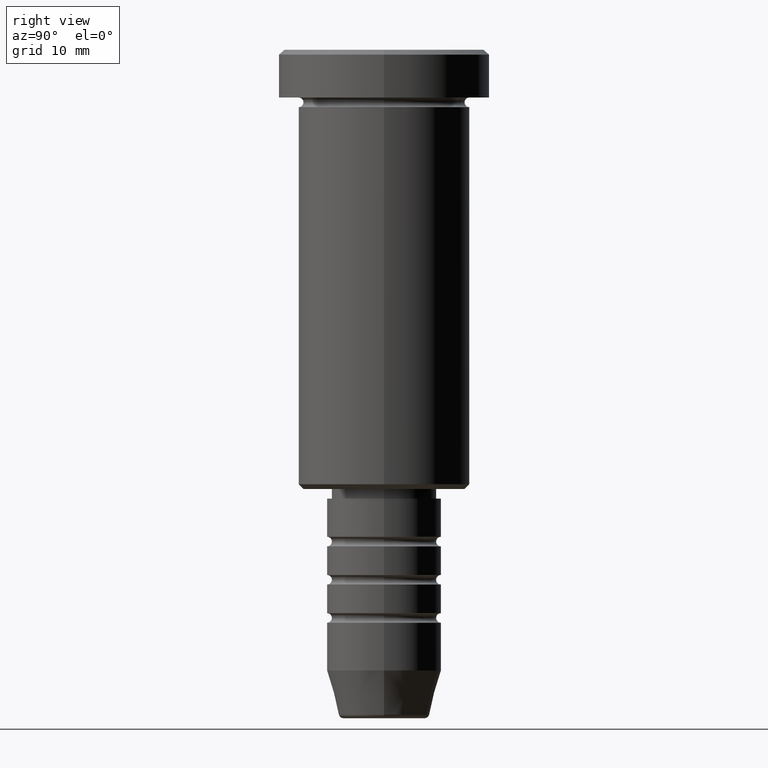
[diagram: clean part render]
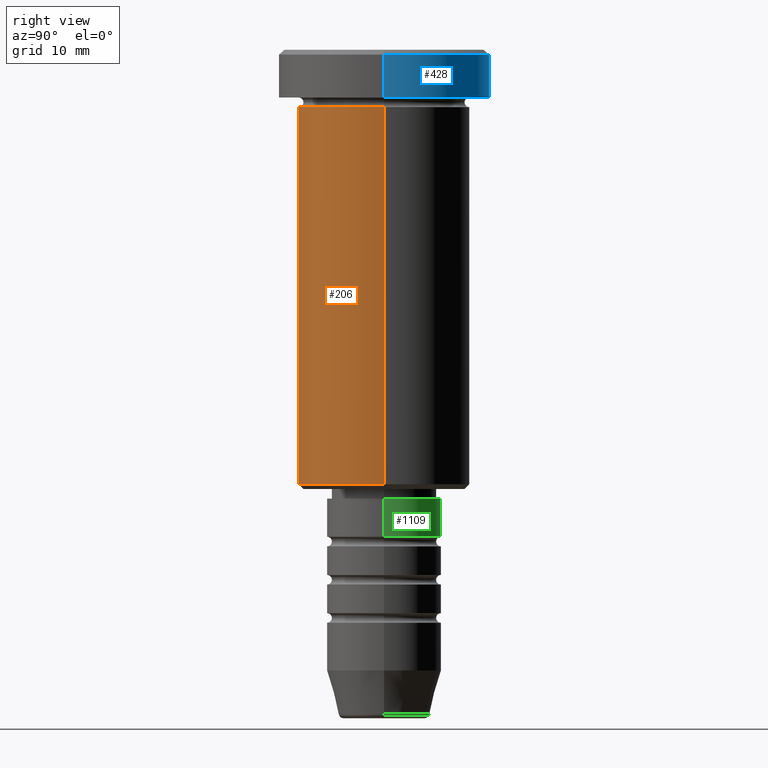
[diagram: same view with three faces highlighted in distinct colors, each labeled with its STEP entity id]
A machine part, right view with three faces highlighted in distinct colors.
Their STEP definitions:

[orange] entity #206 — the highlighted cylindrical surface (partial cylindrical patch) has radius 9 mm, axis along (-0, -0, 1).
#27 = DIRECTION ( 'NONE',  ( 1.000000000000000000, 0.000000000000000000, 0.000000000000000000 ) ) ;
#37 = AXIS2_PLACEMENT_3D ( 'NONE', #1055, #158, #1047 ) ;
#65 = CARTESIAN_POINT ( 'NONE',  ( 9.000000000000000000, 0.000000000000000000, 0.000000000000000000 ) ) ;
#108 = AXIS2_PLACEMENT_3D ( 'NONE', #1131, #586, #27 ) ;
#158 = DIRECTION ( 'NONE',  ( -0.000000000000000000, -0.000000000000000000, 1.000000000000000000 ) ) ;
#179 = EDGE_CURVE ( 'NONE', #905, #277, #946, .T. ) ;
#206 = ADVANCED_FACE ( 'NONE', ( #248 ), #991, .T. ) ;
#210 = CIRCLE ( 'NONE', #108, 9.000000000000000000 ) ;
#248 = FACE_OUTER_BOUND ( 'NONE', #556, .T. ) ;
#277 = VERTEX_POINT ( 'NONE', #776 ) ;
#337 = ORIENTED_EDGE ( 'NONE', *, *, #794, .T. ) ;
#355 = DIRECTION ( 'NONE',  ( -1.000000000000000000, 0.000000000000000000, 0.000000000000000000 ) ) ;
#392 = VERTEX_POINT ( 'NONE', #1082 ) ;
#398 = EDGE_CURVE ( 'NONE', #905, #392, #820, .T. ) ;
#451 = VECTOR ( 'NONE', #1078, 1000.000000000000000 ) ;
#456 = CARTESIAN_POINT ( 'NONE',  ( 0.000000000000000000, 0.000000000000000000, -45.50000000000000711 ) ) ;
#556 = EDGE_LOOP ( 'NONE', ( #816, #1026, #337, #719 ) ) ;
#580 = EDGE_CURVE ( 'NONE', #277, #877, #210, .T. ) ;
#586 = DIRECTION ( 'NONE',  ( -0.000000000000000000, -0.000000000000000000, 1.000000000000000000 ) ) ;
#609 = CARTESIAN_POINT ( 'NONE',  ( 9.000000000000000000, 0.000000000000000000, -6.000000000000000000 ) ) ;
#713 = LINE ( 'NONE', #65, #451 ) ;
#719 = ORIENTED_EDGE ( 'NONE', *, *, #580, .F. ) ;
#765 = DIRECTION ( 'NONE',  ( -0.000000000000000000, -0.000000000000000000, 1.000000000000000000 ) ) ;
#776 = CARTESIAN_POINT ( 'NONE',  ( -9.000000000000000000, 1.102182119232617714E-15, -6.000000000000000000 ) ) ;
#794 = EDGE_CURVE ( 'NONE', #392, #877, #713, .T. ) ;
#816 = ORIENTED_EDGE ( 'NONE', *, *, #179, .F. ) ;
#820 = CIRCLE ( 'NONE', #859, 9.000000000000000000 ) ;
#852 = CARTESIAN_POINT ( 'NONE',  ( -9.000000000000000000, 1.102182119232617714E-15, 0.000000000000000000 ) ) ;
#858 = VECTOR ( 'NONE', #765, 1000.000000000000000 ) ;
#859 = AXIS2_PLACEMENT_3D ( 'NONE', #456, #1170, #355 ) ;
#877 = VERTEX_POINT ( 'NONE', #609 ) ;
#905 = VERTEX_POINT ( 'NONE', #1160 ) ;
#946 = LINE ( 'NONE', #852, #858 ) ;
#991 = CYLINDRICAL_SURFACE ( 'NONE', #37, 9.000000000000000000 ) ;
#1026 = ORIENTED_EDGE ( 'NONE', *, *, #398, .T. ) ;
#1047 = DIRECTION ( 'NONE',  ( 1.000000000000000000, 0.000000000000000000, 0.000000000000000000 ) ) ;
#1055 = CARTESIAN_POINT ( 'NONE',  ( 0.000000000000000000, 0.000000000000000000, 0.000000000000000000 ) ) ;
#1078 = DIRECTION ( 'NONE',  ( -0.000000000000000000, -0.000000000000000000, 1.000000000000000000 ) ) ;
#1082 = CARTESIAN_POINT ( 'NONE',  ( 9.000000000000000000, 0.000000000000000000, -45.50000000000000711 ) ) ;
#1131 = CARTESIAN_POINT ( 'NONE',  ( 0.000000000000000000, 0.000000000000000000, -6.000000000000000000 ) ) ;
#1160 = CARTESIAN_POINT ( 'NONE',  ( -9.000000000000000000, 1.102182119232617714E-15, -45.50000000000000711 ) ) ;
#1170 = DIRECTION ( 'NONE',  ( -0.000000000000000000, -0.000000000000000000, 1.000000000000000000 ) ) ;

[blue] entity #428 — the highlighted cylindrical surface (partial cylindrical patch) has radius 11 mm, axis along (-0, -0, 1).
#3 = DIRECTION ( 'NONE',  ( 1.000000000000000000, 0.000000000000000000, 0.000000000000000000 ) ) ;
#9 = VERTEX_POINT ( 'NONE', #548 ) ;
#102 = VERTEX_POINT ( 'NONE', #593 ) ;
#103 = EDGE_CURVE ( 'NONE', #987, #102, #1050, .T. ) ;
#124 = DIRECTION ( 'NONE',  ( 0.000000000000000000, 0.000000000000000000, -1.000000000000000000 ) ) ;
#140 = EDGE_CURVE ( 'NONE', #9, #102, #667, .T. ) ;
#146 = ORIENTED_EDGE ( 'NONE', *, *, #140, .F. ) ;
#169 = VECTOR ( 'NONE', #391, 1000.000000000000000 ) ;
#203 = VERTEX_POINT ( 'NONE', #1065 ) ;
#237 = DIRECTION ( 'NONE',  ( -0.000000000000000000, -0.000000000000000000, 1.000000000000000000 ) ) ;
#255 = EDGE_CURVE ( 'NONE', #9, #203, #996, .T. ) ;
#264 = EDGE_CURVE ( 'NONE', #203, #987, #420, .T. ) ;
#328 = CARTESIAN_POINT ( 'NONE',  ( -11.00000000000000178, 1.347111479062088602E-15, 0.000000000000000000 ) ) ;
#391 = DIRECTION ( 'NONE',  ( -0.000000000000000000, -0.000000000000000000, 1.000000000000000000 ) ) ;
#420 = LINE ( 'NONE', #328, #1141 ) ;
#428 = ADVANCED_FACE ( 'NONE', ( #647 ), #1004, .T. ) ;
#460 = ORIENTED_EDGE ( 'NONE', *, *, #255, .T. ) ;
#488 = AXIS2_PLACEMENT_3D ( 'NONE', #780, #237, #1061 ) ;
#495 = CARTESIAN_POINT ( 'NONE',  ( 11.00000000000000178, 0.000000000000000000, 0.000000000000000000 ) ) ;
#548 = CARTESIAN_POINT ( 'NONE',  ( 11.00000000000000000, 0.000000000000000000, -5.000000000000000000 ) ) ;
#554 = CARTESIAN_POINT ( 'NONE',  ( 0.000000000000000000, 0.000000000000000000, 0.000000000000000000 ) ) ;
#555 = ORIENTED_EDGE ( 'NONE', *, *, #264, .T. ) ;
#558 = CARTESIAN_POINT ( 'NONE',  ( -11.00000000000000178, 1.347111479062088602E-15, -0.5000000000000229816 ) ) ;
#593 = CARTESIAN_POINT ( 'NONE',  ( 11.00000000000000178, 0.000000000000000000, -0.5000000000000229816 ) ) ;
#647 = FACE_OUTER_BOUND ( 'NONE', #1002, .T. ) ;
#667 = LINE ( 'NONE', #495, #169 ) ;
#780 = CARTESIAN_POINT ( 'NONE',  ( 0.000000000000000000, 0.000000000000000000, -5.000000000000000000 ) ) ;
#827 = ORIENTED_EDGE ( 'NONE', *, *, #103, .T. ) ;
#913 = DIRECTION ( 'NONE',  ( -0.000000000000000000, -0.000000000000000000, 1.000000000000000000 ) ) ;
#932 = DIRECTION ( 'NONE',  ( 1.000000000000000000, 0.000000000000000000, 0.000000000000000000 ) ) ;
#951 = CARTESIAN_POINT ( 'NONE',  ( 0.000000000000000000, 0.000000000000000000, -0.5000000000000229816 ) ) ;
#976 = DIRECTION ( 'NONE',  ( -0.000000000000000000, -0.000000000000000000, 1.000000000000000000 ) ) ;
#982 = AXIS2_PLACEMENT_3D ( 'NONE', #554, #913, #3 ) ;
#987 = VERTEX_POINT ( 'NONE', #558 ) ;
#996 = CIRCLE ( 'NONE', #488, 11.00000000000000000 ) ;
#1002 = EDGE_LOOP ( 'NONE', ( #460, #555, #827, #146 ) ) ;
#1004 = CYLINDRICAL_SURFACE ( 'NONE', #982, 11.00000000000000178 ) ;
#1050 = CIRCLE ( 'NONE', #1068, 11.00000000000000178 ) ;
#1061 = DIRECTION ( 'NONE',  ( 1.000000000000000000, 0.000000000000000000, 0.000000000000000000 ) ) ;
#1065 = CARTESIAN_POINT ( 'NONE',  ( -11.00000000000000000, 1.347111479062088602E-15, -5.000000000000000000 ) ) ;
#1068 = AXIS2_PLACEMENT_3D ( 'NONE', #951, #124, #932 ) ;
#1141 = VECTOR ( 'NONE', #976, 1000.000000000000000 ) ;

[green] entity #1109 — the highlighted cylindrical surface (partial cylindrical patch) has radius 6 mm, axis along (-0, -0, 1).
#4 = CIRCLE ( 'NONE', #494, 6.000000000000000000 ) ;
#157 = CARTESIAN_POINT ( 'NONE',  ( 6.000000000000000000, 0.000000000000000000, -51.00000000000000000 ) ) ;
#168 = ORIENTED_EDGE ( 'NONE', *, *, #1165, .T. ) ;
#186 = EDGE_LOOP ( 'NONE', ( #168, #1038, #664, #1178 ) ) ;
#212 = CIRCLE ( 'NONE', #1052, 6.000000000000000000 ) ;
#242 = CARTESIAN_POINT ( 'NONE',  ( -6.000000000000000000, 7.347880794884119736E-16, -51.00000000000000000 ) ) ;
#306 = DIRECTION ( 'NONE',  ( -0.000000000000000000, -0.000000000000000000, 1.000000000000000000 ) ) ;
#313 = VECTOR ( 'NONE', #306, 1000.000000000000000 ) ;
#346 = DIRECTION ( 'NONE',  ( 1.000000000000000000, 0.000000000000000000, 0.000000000000000000 ) ) ;
#386 = CARTESIAN_POINT ( 'NONE',  ( 0.000000000000000000, 0.000000000000000000, 0.000000000000000000 ) ) ;
#401 = CYLINDRICAL_SURFACE ( 'NONE', #646, 6.000000000000000000 ) ;
#494 = AXIS2_PLACEMENT_3D ( 'NONE', #769, #1135, #791 ) ;
#498 = FACE_OUTER_BOUND ( 'NONE', #186, .T. ) ;
#524 = LINE ( 'NONE', #1139, #770 ) ;
#583 = LINE ( 'NONE', #754, #313 ) ;
#628 = CARTESIAN_POINT ( 'NONE',  ( 0.000000000000000000, 0.000000000000000000, -47.00000000000000000 ) ) ;
#640 = VERTEX_POINT ( 'NONE', #863 ) ;
#646 = AXIS2_PLACEMENT_3D ( 'NONE', #386, #1029, #748 ) ;
#664 = ORIENTED_EDGE ( 'NONE', *, *, #786, .F. ) ;
#672 = VERTEX_POINT ( 'NONE', #157 ) ;
#681 = EDGE_CURVE ( 'NONE', #766, #640, #524, .T. ) ;
#748 = DIRECTION ( 'NONE',  ( 1.000000000000000000, 0.000000000000000000, 0.000000000000000000 ) ) ;
#754 = CARTESIAN_POINT ( 'NONE',  ( 6.000000000000000000, 0.000000000000000000, 0.000000000000000000 ) ) ;
#766 = VERTEX_POINT ( 'NONE', #242 ) ;
#769 = CARTESIAN_POINT ( 'NONE',  ( 0.000000000000000000, 0.000000000000000000, -51.00000000000000000 ) ) ;
#770 = VECTOR ( 'NONE', #1136, 1000.000000000000000 ) ;
#786 = EDGE_CURVE ( 'NONE', #889, #640, #212, .T. ) ;
#791 = DIRECTION ( 'NONE',  ( 1.000000000000000000, 0.000000000000000000, 0.000000000000000000 ) ) ;
#863 = CARTESIAN_POINT ( 'NONE',  ( -6.000000000000000000, 7.347880794884119736E-16, -47.00000000000000000 ) ) ;
#876 = CARTESIAN_POINT ( 'NONE',  ( 6.000000000000000000, 0.000000000000000000, -47.00000000000000000 ) ) ;
#889 = VERTEX_POINT ( 'NONE', #876 ) ;
#989 = DIRECTION ( 'NONE',  ( -0.000000000000000000, -0.000000000000000000, 1.000000000000000000 ) ) ;
#1028 = EDGE_CURVE ( 'NONE', #672, #889, #583, .T. ) ;
#1029 = DIRECTION ( 'NONE',  ( -0.000000000000000000, -0.000000000000000000, 1.000000000000000000 ) ) ;
#1038 = ORIENTED_EDGE ( 'NONE', *, *, #681, .T. ) ;
#1052 = AXIS2_PLACEMENT_3D ( 'NONE', #628, #989, #346 ) ;
#1109 = ADVANCED_FACE ( 'NONE', ( #498 ), #401, .T. ) ;
#1135 = DIRECTION ( 'NONE',  ( -0.000000000000000000, -0.000000000000000000, 1.000000000000000000 ) ) ;
#1136 = DIRECTION ( 'NONE',  ( -0.000000000000000000, -0.000000000000000000, 1.000000000000000000 ) ) ;
#1139 = CARTESIAN_POINT ( 'NONE',  ( -6.000000000000000000, 7.347880794884119736E-16, 0.000000000000000000 ) ) ;
#1165 = EDGE_CURVE ( 'NONE', #672, #766, #4, .T. ) ;
#1178 = ORIENTED_EDGE ( 'NONE', *, *, #1028, .F. ) ;